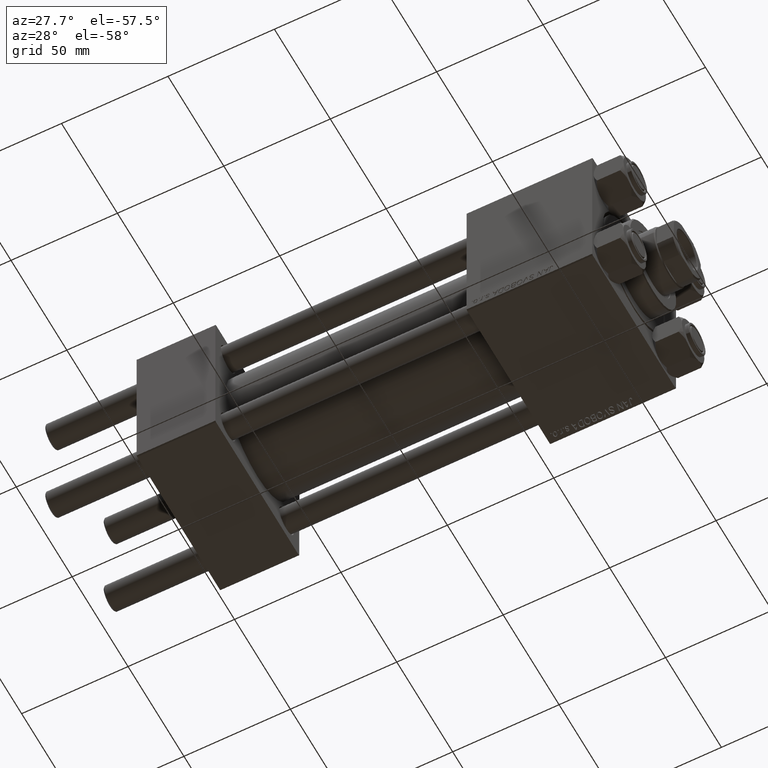
[diagram: clean part render]
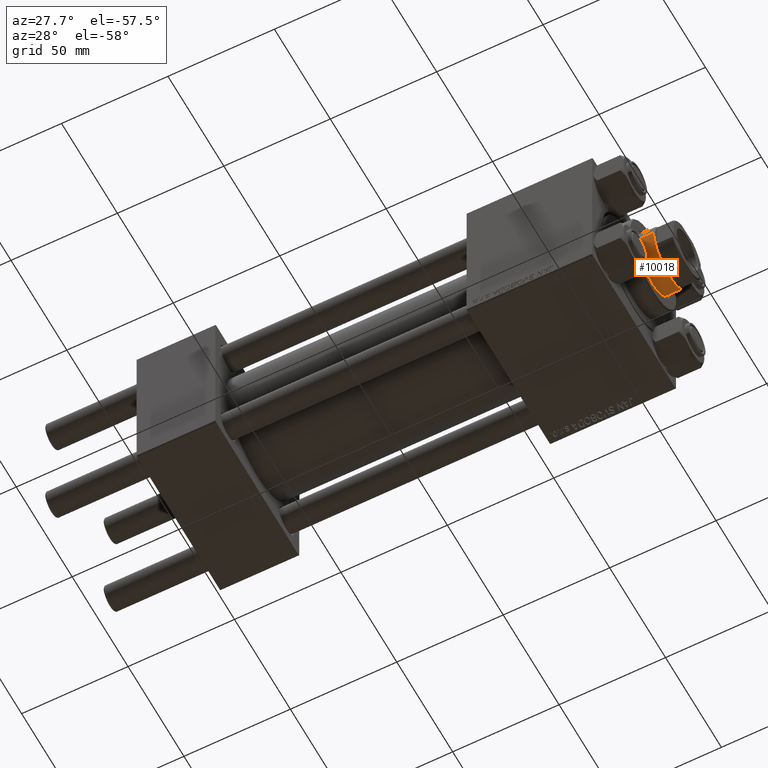
[diagram: same view with one face highlighted and labeled with its STEP entity id]
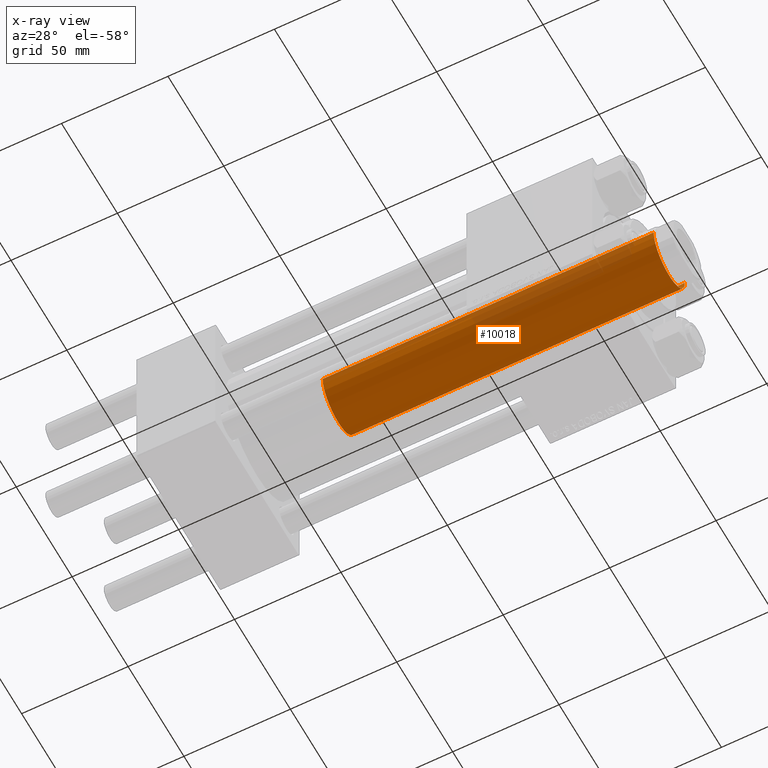
[diagram: x-ray of the same camera — body ghosted, the highlighted face saturated]
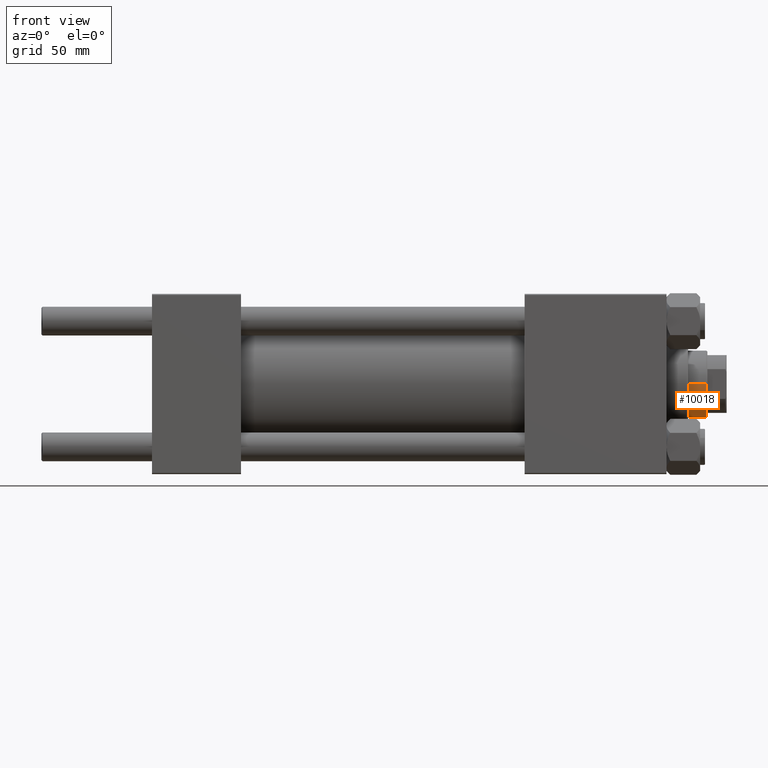
[diagram: same view with one face highlighted and labeled with its STEP entity id]
A machine part, auxiliary view. The second image highlights one B-rep face of the part: STEP entity #10018.
The next image is the same camera in x-ray: the body ghosted, the highlighted face saturated — about 16% of this face is hidden behind the body in this view.
A second angle (front view) of the same face is appended — the face is thin or edge-on in the first view.
In plain terms, the highlighted cylindrical surface (edge-blend (fillet) strip) has radius 14 mm, axis along (-1, 0, 0).
Its self-contained STEP definition (entity closure, byte-faithful):
#261 = EDGE_CURVE ( 'NONE', #21545, #632, #26557, .T. ) ;
#632 = VERTEX_POINT ( 'NONE', #44809 ) ;
#670 = LINE ( 'NONE', #31608, #32981 ) ;
#1475 = ORIENTED_EDGE ( 'NONE', *, *, #261, .T. ) ;
#2054 = FACE_OUTER_BOUND ( 'NONE', #2929, .T. ) ;
#2556 = CARTESIAN_POINT ( 'NONE',  ( 14.00000000000000178, 1.714505518806294835E-15, 194.0000000000000000 ) ) ;
#2929 = EDGE_LOOP ( 'NONE', ( #13283, #11513, #1475, #21090 ) ) ;
#3122 = DIRECTION ( 'NONE',  ( 0.000000000000000000, 0.000000000000000000, 1.000000000000000000 ) ) ;
#3240 = AXIS2_PLACEMENT_3D ( 'NONE', #17487, #3122, #6886 ) ;
#6085 = LINE ( 'NONE', #2556, #37941 ) ;
#6886 = DIRECTION ( 'NONE',  ( 1.000000000000000000, 0.000000000000000000, 0.000000000000000000 ) ) ;
#7074 = CARTESIAN_POINT ( 'NONE',  ( 14.00000000000000178, 1.714505518806294835E-15, 38.00000000000000000 ) ) ;
#9245 = CARTESIAN_POINT ( 'NONE',  ( -14.00000000000000178, 0.000000000000000000, 193.5000000000000284 ) ) ;
#9975 = EDGE_CURVE ( 'NONE', #43717, #21545, #6085, .T. ) ;
#10018 = ADVANCED_FACE ( 'NONE', ( #2054 ), #28973, .T. ) ;
#10108 = DIRECTION ( 'NONE',  ( -0.000000000000000000, -0.000000000000000000, -1.000000000000000000 ) ) ;
#11513 = ORIENTED_EDGE ( 'NONE', *, *, #9975, .T. ) ;
#13283 = ORIENTED_EDGE ( 'NONE', *, *, #35004, .T. ) ;
#17487 = CARTESIAN_POINT ( 'NONE',  ( 0.000000000000000000, 0.000000000000000000, 38.00000000000000000 ) ) ;
#20703 = DIRECTION ( 'NONE',  ( 0.000000000000000000, 0.000000000000000000, -1.000000000000000000 ) ) ;
#20813 = DIRECTION ( 'NONE',  ( -0.000000000000000000, -0.000000000000000000, -1.000000000000000000 ) ) ;
#21090 = ORIENTED_EDGE ( 'NONE', *, *, #46231, .F. ) ;
#21545 = VERTEX_POINT ( 'NONE', #7074 ) ;
#25233 = DIRECTION ( 'NONE',  ( -1.000000000000000000, 0.000000000000000000, 0.000000000000000000 ) ) ;
#26557 = CIRCLE ( 'NONE', #3240, 14.00000000000000178 ) ;
#28973 = CYLINDRICAL_SURFACE ( 'NONE', #44364, 14.00000000000000178 ) ;
#29480 = DIRECTION ( 'NONE',  ( -0.000000000000000000, -0.000000000000000000, -1.000000000000000000 ) ) ;
#29563 = CIRCLE ( 'NONE', #33575, 14.00000000000000178 ) ;
#31608 = CARTESIAN_POINT ( 'NONE',  ( -14.00000000000000178, 0.000000000000000000, 194.0000000000000000 ) ) ;
#32981 = VECTOR ( 'NONE', #20813, 1000.000000000000000 ) ;
#33575 = AXIS2_PLACEMENT_3D ( 'NONE', #39773, #20703, #39533 ) ;
#35004 = EDGE_CURVE ( 'NONE', #42396, #43717, #29563, .T. ) ;
#37330 = CARTESIAN_POINT ( 'NONE',  ( 14.00000000000000178, 1.714505518806294835E-15, 193.5000000000000284 ) ) ;
#37941 = VECTOR ( 'NONE', #10108, 1000.000000000000000 ) ;
#39533 = DIRECTION ( 'NONE',  ( 1.000000000000000000, 0.000000000000000000, 0.000000000000000000 ) ) ;
#39773 = CARTESIAN_POINT ( 'NONE',  ( 0.000000000000000000, 0.000000000000000000, 193.5000000000000284 ) ) ;
#42396 = VERTEX_POINT ( 'NONE', #9245 ) ;
#43717 = VERTEX_POINT ( 'NONE', #37330 ) ;
#44300 = CARTESIAN_POINT ( 'NONE',  ( 0.000000000000000000, 0.000000000000000000, 194.0000000000000000 ) ) ;
#44364 = AXIS2_PLACEMENT_3D ( 'NONE', #44300, #29480, #25233 ) ;
#44809 = CARTESIAN_POINT ( 'NONE',  ( -14.00000000000000178, 0.000000000000000000, 38.00000000000000000 ) ) ;
#46231 = EDGE_CURVE ( 'NONE', #42396, #632, #670, .T. ) ;